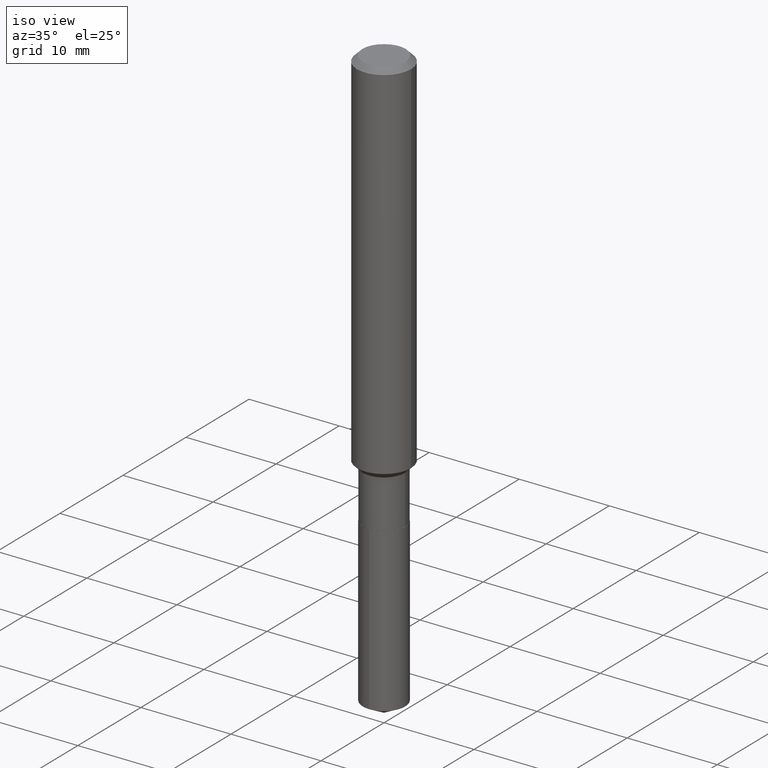
[diagram: clean part render]
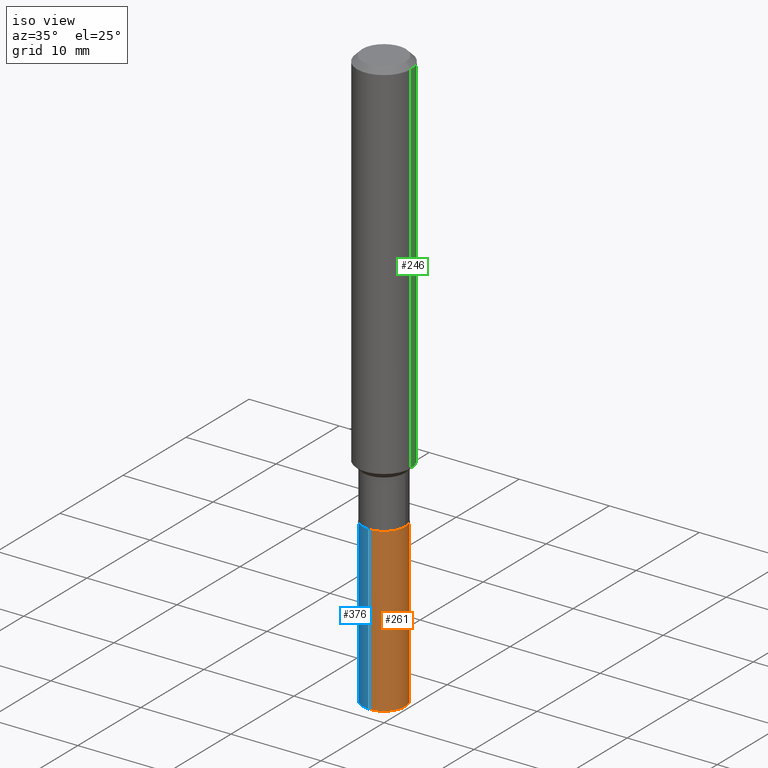
[diagram: same view with three faces highlighted in distinct colors, each labeled with its STEP entity id]
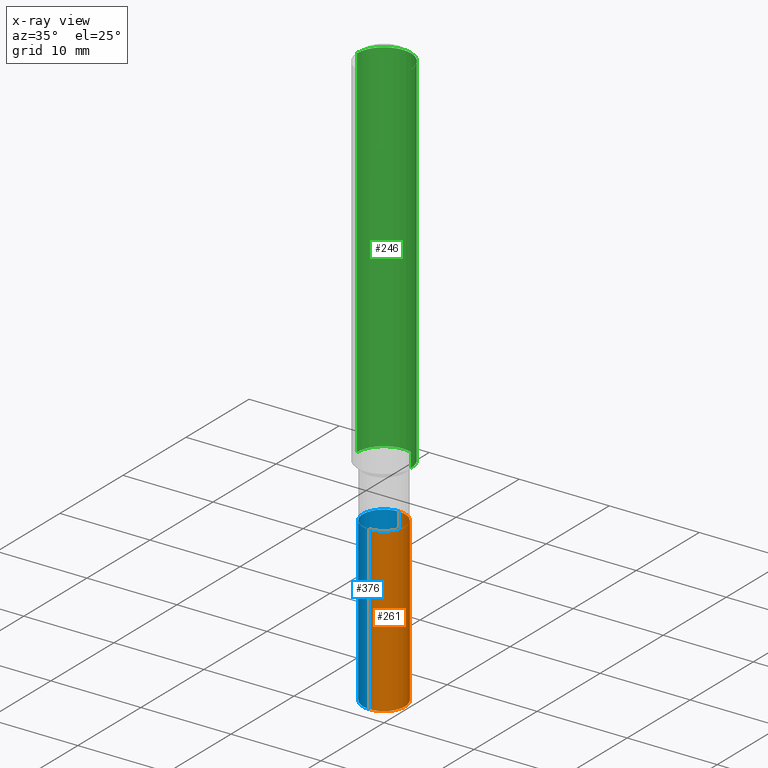
[diagram: x-ray of the same camera — body ghosted, the three highlighted faces saturated]
A machine part, iso view with three faces highlighted in distinct colors.
The next image is the same camera in x-ray (body ghosted, the three faces saturated) — at least one of them is partly hidden behind the body in this view.
Their STEP definitions:

[orange] entity #261 — the highlighted cylindrical surface (edge-blend (fillet) strip) has radius 2.3495 mm, axis along (-0, 0, 1).
#27 = DIRECTION ( 'NONE',  ( -6.982962677686265922E-15, -1.000000000000000000, 2.953349182339743999E-15 ) ) ;
#32 = CARTESIAN_POINT ( 'NONE',  ( 4.495994400171372866E-29, -6.419088441463122636E-15, -1.838499999999999801 ) ) ;
#33 = EDGE_CURVE ( 'NONE', #296, #34, #134, .T. ) ;
#34 = VERTEX_POINT ( 'NONE', #355 ) ;
#35 = AXIS2_PLACEMENT_3D ( 'NONE', #169, #360, #27 ) ;
#71 = ORIENTED_EDGE ( 'NONE', *, *, #283, .T. ) ;
#123 = EDGE_LOOP ( 'NONE', ( #71, #482, #446, #439 ) ) ;
#134 = CIRCLE ( 'NONE', #35, 0.09249999999999999889 ) ;
#162 = CIRCLE ( 'NONE', #467, 0.09249999999999999889 ) ;
#165 = DIRECTION ( 'NONE',  ( -2.445441355188963032E-29, 3.491520650232079590E-15, 1.000000000000000000 ) ) ;
#169 = CARTESIAN_POINT ( 'NONE',  ( 4.495994400171372866E-29, -6.419088441463122636E-15, -1.838499999999999801 ) ) ;
#183 = DIRECTION ( 'NONE',  ( -2.445441355188963032E-29, 3.491520650232079985E-15, 1.000000000000000000 ) ) ;
#185 = CARTESIAN_POINT ( 'NONE',  ( 6.572520305781548854E-16, 0.09249999999999110323, -2.549216877571313766 ) ) ;
#193 = DIRECTION ( 'NONE',  ( -2.445441355188963032E-29, 3.491520650232079590E-15, 1.000000000000000000 ) ) ;
#196 = VECTOR ( 'NONE', #193, 39.37007874015748143 ) ;
#198 = DIRECTION ( 'NONE',  ( -2.445441355188963032E-29, 3.491520650232079985E-15, 1.000000000000000000 ) ) ;
#206 = CARTESIAN_POINT ( 'NONE',  ( 6.572520305781376291E-16, 0.09249999999999358735, -1.838500000000000023 ) ) ;
#230 = CARTESIAN_POINT ( 'NONE',  ( -6.459240476859346268E-16, -0.09250000000000642431, -1.838499999999999579 ) ) ;
#261 = ADVANCED_FACE ( 'NONE', ( #480 ), #369, .T. ) ;
#264 = VERTEX_POINT ( 'NONE', #185 ) ;
#266 = CARTESIAN_POINT ( 'NONE',  ( -6.459240476859346268E-16, -0.09250000000000642431, -1.838499999999999579 ) ) ;
#283 = EDGE_CURVE ( 'NONE', #306, #264, #162, .T. ) ;
#296 = VERTEX_POINT ( 'NONE', #266 ) ;
#299 = DIRECTION ( 'NONE',  ( -6.982962677686265922E-15, -1.000000000000000000, 2.953349182339743999E-15 ) ) ;
#304 = LINE ( 'NONE', #230, #196 ) ;
#306 = VERTEX_POINT ( 'NONE', #450 ) ;
#315 = DIRECTION ( 'NONE',  ( -6.982962677686265922E-15, -1.000000000000000000, 5.906698364679487997E-15 ) ) ;
#350 = EDGE_CURVE ( 'NONE', #306, #296, #304, .T. ) ;
#355 = CARTESIAN_POINT ( 'NONE',  ( 6.572520305781550827E-16, 0.09249999999999358735, -1.838500000000000023 ) ) ;
#360 = DIRECTION ( 'NONE',  ( -2.445441355188963032E-29, 3.491520650232079985E-15, 1.000000000000000000 ) ) ;
#369 = CYLINDRICAL_SURFACE ( 'NONE', #426, 0.09249999999999999889 ) ;
#426 = AXIS2_PLACEMENT_3D ( 'NONE', #32, #183, #299 ) ;
#439 = ORIENTED_EDGE ( 'NONE', *, *, #350, .F. ) ;
#446 = ORIENTED_EDGE ( 'NONE', *, *, #33, .F. ) ;
#450 = CARTESIAN_POINT ( 'NONE',  ( -6.459240476859172718E-16, -0.09250000000000889455, -2.549216877571312434 ) ) ;
#452 = EDGE_CURVE ( 'NONE', #264, #34, #471, .T. ) ;
#459 = VECTOR ( 'NONE', #165, 39.37007874015748143 ) ;
#461 = CARTESIAN_POINT ( 'NONE',  ( 6.234010844415033775E-29, -8.900571095971826926E-15, -2.549216877571312878 ) ) ;
#467 = AXIS2_PLACEMENT_3D ( 'NONE', #461, #198, #315 ) ;
#471 = LINE ( 'NONE', #206, #459 ) ;
#480 = FACE_OUTER_BOUND ( 'NONE', #123, .T. ) ;
#482 = ORIENTED_EDGE ( 'NONE', *, *, #452, .T. ) ;

[blue] entity #376 — the highlighted cylindrical surface (edge-blend (fillet) strip) has radius 2.3495 mm, axis along (-0, 0, 1).
#3 = ORIENTED_EDGE ( 'NONE', *, *, #297, .T. ) ;
#4 = CARTESIAN_POINT ( 'NONE',  ( 6.234010844415033775E-29, -8.900571095971826926E-15, -2.549216877571312878 ) ) ;
#34 = VERTEX_POINT ( 'NONE', #355 ) ;
#39 = FACE_OUTER_BOUND ( 'NONE', #192, .T. ) ;
#40 = ORIENTED_EDGE ( 'NONE', *, *, #452, .F. ) ;
#47 = DIRECTION ( 'NONE',  ( -6.982962677686265922E-15, -1.000000000000000000, 5.906698364679487997E-15 ) ) ;
#54 = CARTESIAN_POINT ( 'NONE',  ( 4.495994400171372866E-29, -6.419088441463122636E-15, -1.838499999999999801 ) ) ;
#73 = DIRECTION ( 'NONE',  ( -2.445441355188963032E-29, 3.491520650232079985E-15, 1.000000000000000000 ) ) ;
#79 = AXIS2_PLACEMENT_3D ( 'NONE', #54, #428, #177 ) ;
#99 = AXIS2_PLACEMENT_3D ( 'NONE', #414, #73, #272 ) ;
#142 = EDGE_CURVE ( 'NONE', #34, #296, #338, .T. ) ;
#151 = CYLINDRICAL_SURFACE ( 'NONE', #99, 0.09249999999999999889 ) ;
#152 = ORIENTED_EDGE ( 'NONE', *, *, #350, .T. ) ;
#165 = DIRECTION ( 'NONE',  ( -2.445441355188963032E-29, 3.491520650232079590E-15, 1.000000000000000000 ) ) ;
#177 = DIRECTION ( 'NONE',  ( -6.982962677686265922E-15, -1.000000000000000000, 2.953349182339743999E-15 ) ) ;
#185 = CARTESIAN_POINT ( 'NONE',  ( 6.572520305781548854E-16, 0.09249999999999110323, -2.549216877571313766 ) ) ;
#192 = EDGE_LOOP ( 'NONE', ( #40, #3, #152, #393 ) ) ;
#193 = DIRECTION ( 'NONE',  ( -2.445441355188963032E-29, 3.491520650232079590E-15, 1.000000000000000000 ) ) ;
#196 = VECTOR ( 'NONE', #193, 39.37007874015748143 ) ;
#206 = CARTESIAN_POINT ( 'NONE',  ( 6.572520305781376291E-16, 0.09249999999999358735, -1.838500000000000023 ) ) ;
#230 = CARTESIAN_POINT ( 'NONE',  ( -6.459240476859346268E-16, -0.09250000000000642431, -1.838499999999999579 ) ) ;
#264 = VERTEX_POINT ( 'NONE', #185 ) ;
#266 = CARTESIAN_POINT ( 'NONE',  ( -6.459240476859346268E-16, -0.09250000000000642431, -1.838499999999999579 ) ) ;
#272 = DIRECTION ( 'NONE',  ( -6.982962677686265922E-15, -1.000000000000000000, 2.953349182339743999E-15 ) ) ;
#291 = AXIS2_PLACEMENT_3D ( 'NONE', #4, #455, #47 ) ;
#296 = VERTEX_POINT ( 'NONE', #266 ) ;
#297 = EDGE_CURVE ( 'NONE', #264, #306, #375, .T. ) ;
#304 = LINE ( 'NONE', #230, #196 ) ;
#306 = VERTEX_POINT ( 'NONE', #450 ) ;
#338 = CIRCLE ( 'NONE', #79, 0.09249999999999999889 ) ;
#350 = EDGE_CURVE ( 'NONE', #306, #296, #304, .T. ) ;
#355 = CARTESIAN_POINT ( 'NONE',  ( 6.572520305781550827E-16, 0.09249999999999358735, -1.838500000000000023 ) ) ;
#375 = CIRCLE ( 'NONE', #291, 0.09249999999999999889 ) ;
#376 = ADVANCED_FACE ( 'NONE', ( #39 ), #151, .T. ) ;
#393 = ORIENTED_EDGE ( 'NONE', *, *, #142, .F. ) ;
#414 = CARTESIAN_POINT ( 'NONE',  ( 4.495994400171372866E-29, -6.419088441463122636E-15, -1.838499999999999801 ) ) ;
#428 = DIRECTION ( 'NONE',  ( -2.445441355188963032E-29, 3.491520650232079985E-15, 1.000000000000000000 ) ) ;
#450 = CARTESIAN_POINT ( 'NONE',  ( -6.459240476859172718E-16, -0.09250000000000889455, -2.549216877571312434 ) ) ;
#452 = EDGE_CURVE ( 'NONE', #264, #34, #471, .T. ) ;
#455 = DIRECTION ( 'NONE',  ( -2.445441355188963032E-29, 3.491520650232079985E-15, 1.000000000000000000 ) ) ;
#459 = VECTOR ( 'NONE', #165, 39.37007874015748143 ) ;
#471 = LINE ( 'NONE', #206, #459 ) ;

[green] entity #246 — the highlighted cylindrical surface (edge-blend (fillet) strip) has radius 2.9997 mm, axis along (-0, 0, 1).
#38 = EDGE_LOOP ( 'NONE', ( #223, #280, #184, #48 ) ) ;
#48 = ORIENTED_EDGE ( 'NONE', *, *, #464, .F. ) ;
#52 = DIRECTION ( 'NONE',  ( -2.445468806185136877E-29, 3.491481338843145188E-15, 1.000000000000000000 ) ) ;
#56 = LINE ( 'NONE', #400, #305 ) ;
#62 = DIRECTION ( 'NONE',  ( -2.445468806185136597E-29, 3.491481338843145583E-15, 1.000000000000000000 ) ) ;
#103 = DIRECTION ( 'NONE',  ( 1.000000000000000000, -6.982962677686266711E-15, 4.876176775795935793E-29 ) ) ;
#117 = VERTEX_POINT ( 'NONE', #396 ) ;
#128 = EDGE_CURVE ( 'NONE', #347, #349, #170, .T. ) ;
#130 = CARTESIAN_POINT ( 'NONE',  ( 5.776197320209326656E-31, -8.246878922347558061E-17, -0.02362000000000013741 ) ) ;
#144 = AXIS2_PLACEMENT_3D ( 'NONE', #433, #207, #166 ) ;
#149 = EDGE_CURVE ( 'NONE', #117, #300, #434, .T. ) ;
#166 = DIRECTION ( 'NONE',  ( 1.000000000000000000, -6.982962677686269077E-15, 0.000000000000000000 ) ) ;
#170 = CIRCLE ( 'NONE', #195, 0.1180999999999999966 ) ;
#171 = DIRECTION ( 'NONE',  ( -2.445468806185136877E-29, 3.491481338843145188E-15, 1.000000000000000000 ) ) ;
#181 = CARTESIAN_POINT ( 'NONE',  ( 0.000000000000000000, 0.000000000000000000, 0.000000000000000000 ) ) ;
#184 = ORIENTED_EDGE ( 'NONE', *, *, #128, .F. ) ;
#195 = AXIS2_PLACEMENT_3D ( 'NONE', #130, #398, #284 ) ;
#207 = DIRECTION ( 'NONE',  ( -2.445468806185136597E-29, 3.491481338843145583E-15, 1.000000000000000000 ) ) ;
#210 = LINE ( 'NONE', #361, #227 ) ;
#223 = ORIENTED_EDGE ( 'NONE', *, *, #149, .T. ) ;
#227 = VECTOR ( 'NONE', #171, 39.37007874015748143 ) ;
#239 = CARTESIAN_POINT ( 'NONE',  ( 0.1180999999999999966, -9.071566814582237199E-16, -0.02362000000000013741 ) ) ;
#246 = ADVANCED_FACE ( 'NONE', ( #324 ), #469, .T. ) ;
#280 = ORIENTED_EDGE ( 'NONE', *, *, #448, .T. ) ;
#284 = DIRECTION ( 'NONE',  ( 1.000000000000000000, -6.982962677686266711E-15, 0.000000000000000000 ) ) ;
#300 = VERTEX_POINT ( 'NONE', #353 ) ;
#305 = VECTOR ( 'NONE', #52, 39.37007874015748143 ) ;
#309 = CARTESIAN_POINT ( 'NONE',  ( -0.1180999999999999966, -1.995443068820515466E-15, -0.02362000000000013741 ) ) ;
#324 = FACE_OUTER_BOUND ( 'NONE', #38, .T. ) ;
#347 = VERTEX_POINT ( 'NONE', #239 ) ;
#349 = VERTEX_POINT ( 'NONE', #309 ) ;
#353 = CARTESIAN_POINT ( 'NONE',  ( -0.1181000000000001909, -4.747568319350236827E-15, -1.600099999999999634 ) ) ;
#361 = CARTESIAN_POINT ( 'NONE',  ( 0.1181000000000001077, -8.246878922347488542E-16, 5.758764772215005345E-30 ) ) ;
#396 = CARTESIAN_POINT ( 'NONE',  ( 0.1181000000000001909, -6.411407182517665653E-15, -1.600099999999999634 ) ) ;
#398 = DIRECTION ( 'NONE',  ( -2.445468806185136597E-29, 3.491481338843145583E-15, 1.000000000000000000 ) ) ;
#400 = CARTESIAN_POINT ( 'NONE',  ( -0.1181000000000001077, 8.391509709326790846E-16, -5.809262341591049389E-30 ) ) ;
#433 = CARTESIAN_POINT ( 'NONE',  ( 3.912994636776836330E-29, -5.586719290282915813E-15, -1.600099999999999634 ) ) ;
#434 = CIRCLE ( 'NONE', #144, 0.1181000000000001909 ) ;
#448 = EDGE_CURVE ( 'NONE', #300, #349, #56, .T. ) ;
#464 = EDGE_CURVE ( 'NONE', #117, #347, #210, .T. ) ;
#469 = CYLINDRICAL_SURFACE ( 'NONE', #486, 0.1181000000000001077 ) ;
#486 = AXIS2_PLACEMENT_3D ( 'NONE', #181, #62, #103 ) ;